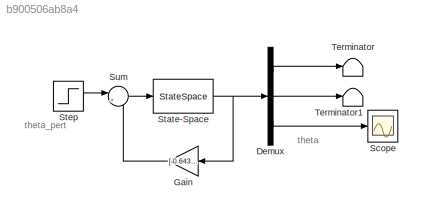
MODEL slx_b900506ab8a4
KIND model
CONFIG AbsTol = auto
CONFIG EnableMultiTasking = off
CONFIG FixedStep = auto
CONFIG MaxStep = auto
CONFIG MinStep = auto
CONFIG RelTol = 1e-3
CONFIG SampleTimeConstraint = Unconstrained
CONFIG SolverName = VariableStepAuto
CONFIG StartTime = 0.0
CONFIG StopTime = 40
BLOCK [Demux] Demux
  Outputs = 3
  Ports = [1, 3]
BLOCK [Gain] Gain
  Gain = [-0.6435 169.6950 7.0711]
  Multiplication = Matrix(K*u)
  NameLocation = top
BLOCK [Scope] Scope
  Floating = off
  NumInputPorts = 1
  Ports = [1]
  ScopeSpecificationString = Simulink.scopes.TimeScopeBlockCfg('CurrentConfiguration', extmgr.ConfigurationSet(extmgr.Configuration('Core','General UI',true),extmgr.Configuration('Core','Source UI',true),extmgr.Configuration('Sources','WiredSimulink',true),extmgr.Configuration('Visuals','Time Domain',true,'SerializedDisplays',{struct('MinYLimReal','-0.04168','MaxYLimReal','0.00463','YLabelReal','','MinYLimMag','0.00000','MaxY...<+1360ch>
BLOCK [StateSpace] State-Space
  A = [-0.313 56.7 0; -0.0139 -0.426 0; 0 56.7 0]
  B = [0.232; 0.0203; 0]
  C = eye(3)
  ContinuousStateAttributes = {'Angle_of_attack', 'Pitch_rate', 'Pitch_angle'}
  D = [0;0;0]
  InitialCondition = 0
  Ports = [1, 1]
BLOCK [Step] Step
  After = -0.25
  SampleTime = 0
  Time = 0
BLOCK [Sum] Sum
  Inputs = |+-
  Ports = [2, 1]
BLOCK [Terminator] Terminator
BLOCK [Terminator] Terminator1
ANNOTATION (root): theta
ANNOTATION (root): theta_pert
LINE Demux:1 -> Terminator:1
LINE Demux:2 -> Terminator1:1
LINE Demux:3 -> Scope:1
LINE Gain:1 -> Sum:2
NET State-Space:1 -> Demux:1, Gain:1
LINE Step:1 -> Sum:1
LINE Sum:1 -> State-Space:1
note: NET lines group one-source signal fan-out (src -> all destinations, sorted); 1:1 wires keep LINE
